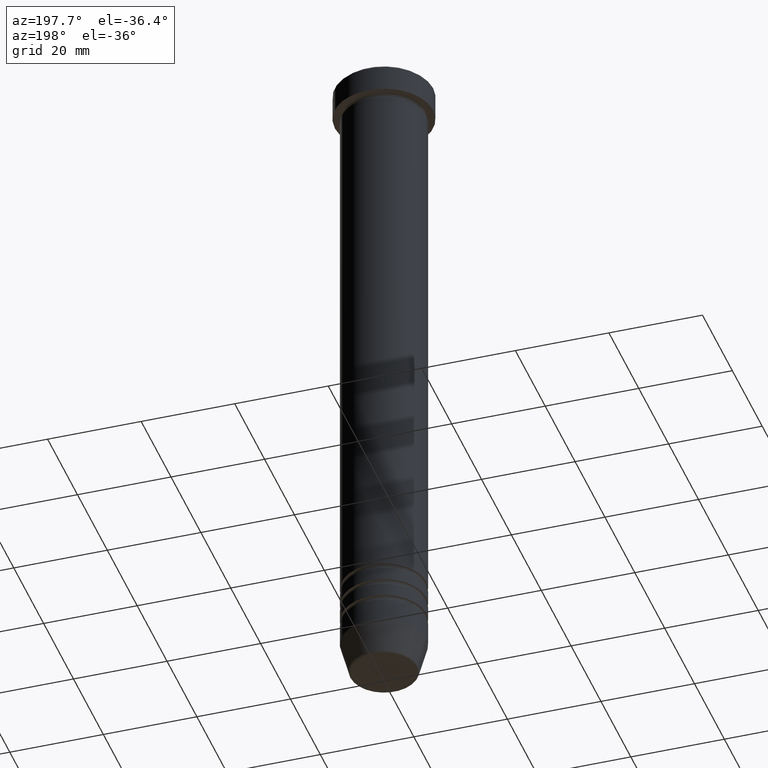
[diagram: clean part render]
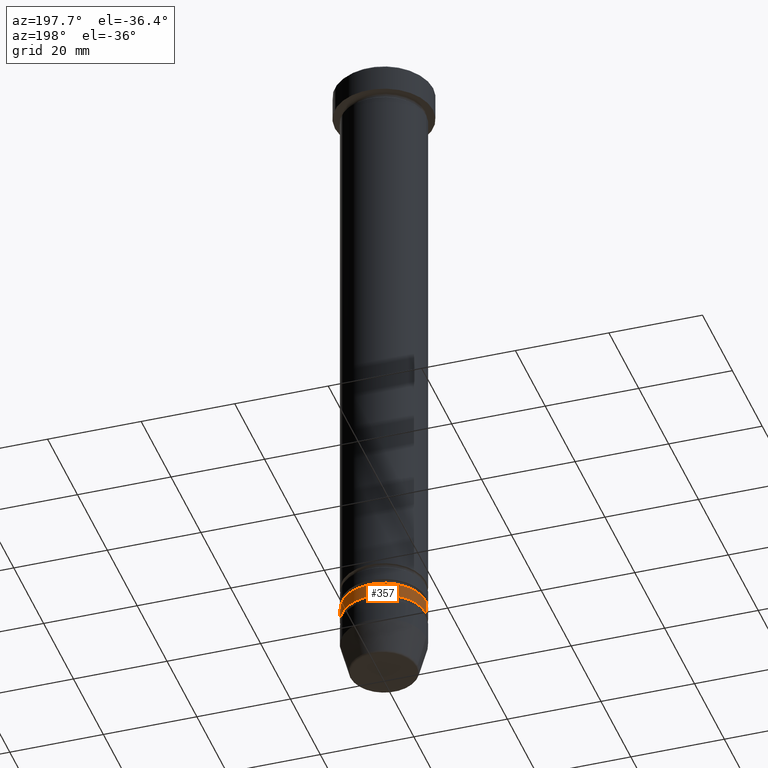
[diagram: same view with one face highlighted and labeled with its STEP entity id]
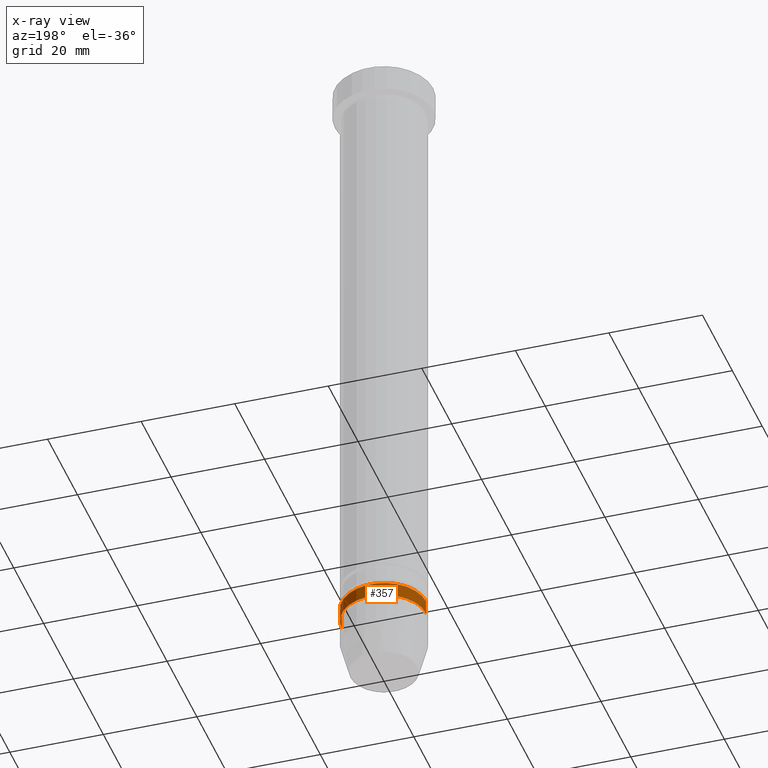
[diagram: x-ray of the same camera — body ghosted, the highlighted face saturated]
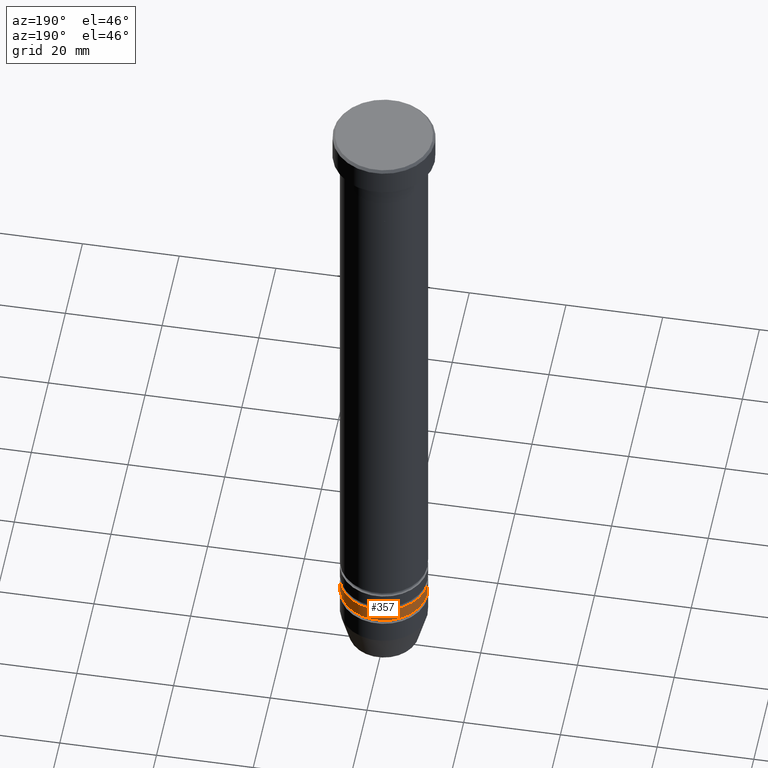
[diagram: same view with one face highlighted and labeled with its STEP entity id]
A machine part, auxiliary view. The second image highlights one B-rep face of the part: STEP entity #357.
The next image is the same camera in x-ray: the body ghosted, the highlighted face saturated — about 0% of this face is hidden behind the body in this view.
A second angle (auxiliary view) of the same face is appended — the face is thin or edge-on in the first view.
In plain terms, the highlighted cylindrical surface (partial cylindrical patch) has radius 9 mm, axis along (-0, -0, 1).
Its self-contained STEP definition (entity closure, byte-faithful):
#36 = CARTESIAN_POINT ( 'NONE',  ( 8.999999999999992895, 0.000000000000000000, -133.0000000000000000 ) ) ;
#56 = VERTEX_POINT ( 'NONE', #172 ) ;
#147 = DIRECTION ( 'NONE',  ( -0.000000000000000000, -0.000000000000000000, 1.000000000000000000 ) ) ;
#168 = LINE ( 'NONE', #963, #524 ) ;
#172 = CARTESIAN_POINT ( 'NONE',  ( 9.000000000000000000, 0.000000000000000000, -130.0000000000000284 ) ) ;
#193 = EDGE_LOOP ( 'NONE', ( #1073, #484, #936, #479 ) ) ;
#257 = CARTESIAN_POINT ( 'NONE',  ( 8.999999999999996447, 0.000000000000000000, 0.000000000000000000 ) ) ;
#297 = CYLINDRICAL_SURFACE ( 'NONE', #1016, 8.999999999999996447 ) ;
#301 = VERTEX_POINT ( 'NONE', #821 ) ;
#323 = CARTESIAN_POINT ( 'NONE',  ( 0.000000000000000000, 0.000000000000000000, -133.0000000000000000 ) ) ;
#357 = ADVANCED_FACE ( 'NONE', ( #1095 ), #297, .T. ) ;
#387 = DIRECTION ( 'NONE',  ( 1.000000000000000000, 0.000000000000000000, 0.000000000000000000 ) ) ;
#394 = VERTEX_POINT ( 'NONE', #36 ) ;
#459 = CIRCLE ( 'NONE', #943, 9.000000000000000000 ) ;
#461 = DIRECTION ( 'NONE',  ( -0.000000000000000000, -0.000000000000000000, 1.000000000000000000 ) ) ;
#479 = ORIENTED_EDGE ( 'NONE', *, *, #977, .F. ) ;
#484 = ORIENTED_EDGE ( 'NONE', *, *, #997, .T. ) ;
#524 = VECTOR ( 'NONE', #1128, 1000.000000000000000 ) ;
#538 = AXIS2_PLACEMENT_3D ( 'NONE', #323, #147, #387 ) ;
#597 = CARTESIAN_POINT ( 'NONE',  ( -9.000000000000000000, 1.102182119232617911E-15, -130.0000000000000284 ) ) ;
#603 = DIRECTION ( 'NONE',  ( -0.000000000000000000, -0.000000000000000000, 1.000000000000000000 ) ) ;
#610 = CARTESIAN_POINT ( 'NONE',  ( 0.000000000000000000, 0.000000000000000000, -130.0000000000000284 ) ) ;
#630 = EDGE_CURVE ( 'NONE', #56, #1117, #459, .T. ) ;
#647 = VECTOR ( 'NONE', #603, 1000.000000000000000 ) ;
#651 = CARTESIAN_POINT ( 'NONE',  ( 0.000000000000000000, 0.000000000000000000, 0.000000000000000000 ) ) ;
#699 = LINE ( 'NONE', #257, #647 ) ;
#705 = DIRECTION ( 'NONE',  ( -0.000000000000000000, -0.000000000000000000, 1.000000000000000000 ) ) ;
#715 = EDGE_CURVE ( 'NONE', #394, #301, #725, .T. ) ;
#716 = DIRECTION ( 'NONE',  ( 1.000000000000000000, 0.000000000000000000, 0.000000000000000000 ) ) ;
#725 = CIRCLE ( 'NONE', #538, 8.999999999999992895 ) ;
#821 = CARTESIAN_POINT ( 'NONE',  ( -8.999999999999992895, 1.102182119232617122E-15, -133.0000000000000000 ) ) ;
#936 = ORIENTED_EDGE ( 'NONE', *, *, #630, .F. ) ;
#943 = AXIS2_PLACEMENT_3D ( 'NONE', #610, #705, #716 ) ;
#963 = CARTESIAN_POINT ( 'NONE',  ( -8.999999999999996447, 1.102182119232617319E-15, 0.000000000000000000 ) ) ;
#977 = EDGE_CURVE ( 'NONE', #394, #56, #699, .T. ) ;
#994 = DIRECTION ( 'NONE',  ( 1.000000000000000000, 0.000000000000000000, 0.000000000000000000 ) ) ;
#997 = EDGE_CURVE ( 'NONE', #301, #1117, #168, .T. ) ;
#1016 = AXIS2_PLACEMENT_3D ( 'NONE', #651, #461, #994 ) ;
#1073 = ORIENTED_EDGE ( 'NONE', *, *, #715, .T. ) ;
#1095 = FACE_OUTER_BOUND ( 'NONE', #193, .T. ) ;
#1117 = VERTEX_POINT ( 'NONE', #597 ) ;
#1128 = DIRECTION ( 'NONE',  ( -0.000000000000000000, -0.000000000000000000, 1.000000000000000000 ) ) ;